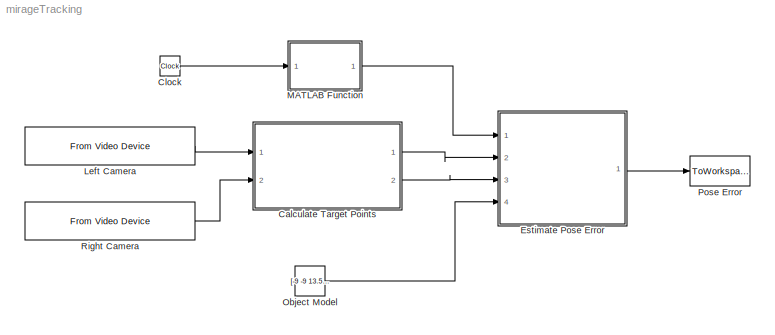
MODEL mirageTracking
KIND model
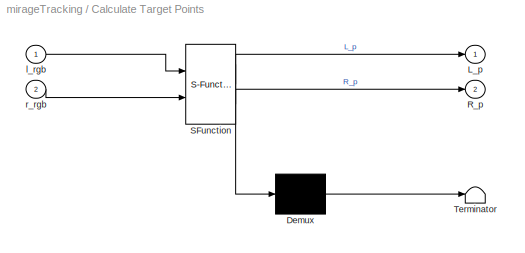
BLOCK [SubSystem] Calculate Target Points
  ErrorFcn = Stateflow.Translate.translate
  PermitHierarchicalResolution = ExplicitOnly
  Ports = [2, 2]
  RequestExecContextInheritance = off
  SFBlockType = MATLAB Function
  SID = 5
  TreatAsAtomicUnit = on
BLOCK [Demux] Calculate Target Points/ Demux 
  Outputs = 1
  Ports = [1, 1]
  SID = 5::22
BLOCK [S-Function] Calculate Target Points/ SFunction 
  EnableBusSupport = on
  FunctionName = sf_sfun
  PortCounts = [2 3]
  Ports = [2, 3]
  SID = 5::21
  Tag = Stateflow S-Function mirageTracking 1
BLOCK [Terminator] Calculate Target Points/ Terminator 
  SID = 5::23
BLOCK [Outport] Calculate Target Points/L_p
  IconDisplay = Port number
  SID = 5::5
BLOCK [Outport] Calculate Target Points/R_p
  IconDisplay = Port number
  Port = 2
  SID = 5::20
BLOCK [Inport] Calculate Target Points/l_rgb
  IconDisplay = Port number
  SID = 5::1
BLOCK [Inport] Calculate Target Points/r_rgb
  IconDisplay = Port number
  Port = 2
  SID = 5::19
BLOCK [Clock] Clock
  SID = 1
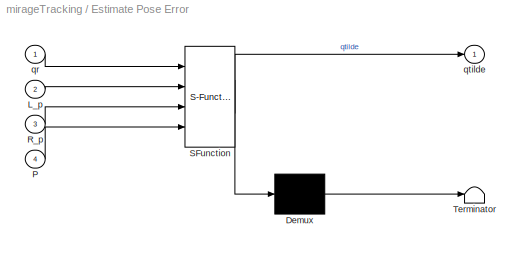
BLOCK [SubSystem] Estimate Pose Error
  ErrorFcn = Stateflow.Translate.translate
  PermitHierarchicalResolution = ExplicitOnly
  Ports = [4, 1]
  RequestExecContextInheritance = off
  SFBlockType = MATLAB Function
  SID = 6
  TreatAsAtomicUnit = on
BLOCK [Demux] Estimate Pose Error/ Demux 
  Outputs = 1
  Ports = [1, 1]
  SID = 6::23
BLOCK [S-Function] Estimate Pose Error/ SFunction 
  EnableBusSupport = on
  FunctionName = sf_sfun
  PortCounts = [4 2]
  Ports = [4, 2]
  SID = 6::22
  Tag = Stateflow S-Function mirageTracking 3
BLOCK [Terminator] Estimate Pose Error/ Terminator 
  SID = 6::24
BLOCK [Inport] Estimate Pose Error/L_p
  IconDisplay = Port number
  Port = 2
  SID = 6::19
BLOCK [Inport] Estimate Pose Error/P
  IconDisplay = Port number
  Port = 4
  SID = 6::21
BLOCK [Inport] Estimate Pose Error/R_p
  IconDisplay = Port number
  Port = 3
  SID = 6::20
BLOCK [Inport] Estimate Pose Error/qr
  IconDisplay = Port number
  SID = 6::1
BLOCK [Outport] Estimate Pose Error/qtilde
  IconDisplay = Port number
  SID = 6::5
BLOCK [Reference] Left Camera  REF=imaqlib/From Video Device
  AllMetadata = IsPositionTracked;IsSkeletonTracked;JointDepthIndices;JointImageIndices;JointTrackingState;JointWorldCoordinates;PositionDepthIndices;PositionImageIndices;PositionWorldCoordinates;SegmentationData;SkeletonTrackingID
  BayerSensorAlignment = grbg
  BlockHandle = 1921.0006
  CanDoHWTrigger = no
  DataType = single
  DevXMLPath = <path>
  Device = winvideo 1 (Logitech HD Webcam C525)
  DeviceMenu = winvideo 1 (Logitech HD Webcam C525)
  EnableHWTrigger = off
  EngLibPath = C:\\Program Files<path>
  EngXMLPath = C:\\Program Files<path>
  ObjConstructor = videoinput('winvideo', 1)
  OutputPortsMode = One multidimensional signal
  Ports = [0, 1]
  ROIColumn = 0
  ROIHeight = 960
  ROIPosition = [0 0 960 1280]
  ROIRow = 0
  ROIWidth = 1280
  ReturnedColorSpace = rgb
  SID = 3
  SampleTime = 0.1
  SourceBlock = imaqlib/From Video Device
  SourceType = From Video Device
  TriggerConfiguration = none/none
  UserData = DataTag0
  UserDataPersistent = on
  VideoFormat = RGB24_1280x960
  VideoFormatMenu = RGB24_1280x960
  VideoSource = input1
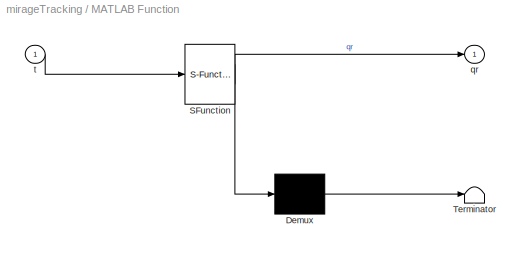
BLOCK [SubSystem] MATLAB Function
  ErrorFcn = Stateflow.Translate.translate
  PermitHierarchicalResolution = ExplicitOnly
  Ports = [1, 1]
  RequestExecContextInheritance = off
  SFBlockType = MATLAB Function
  SID = 2
  TreatAsAtomicUnit = on
BLOCK [Demux] MATLAB Function/ Demux 
  Outputs = 1
  Ports = [1, 1]
  SID = 2::20
BLOCK [S-Function] MATLAB Function/ SFunction 
  EnableBusSupport = on
  FunctionName = sf_sfun
  PortCounts = [1 2]
  Ports = [1, 2]
  SID = 2::19
  Tag = Stateflow S-Function mirageTracking 2
BLOCK [Terminator] MATLAB Function/ Terminator 
  SID = 2::21
BLOCK [Outport] MATLAB Function/qr
  IconDisplay = Port number
  SID = 2::5
BLOCK [Inport] MATLAB Function/t
  IconDisplay = Port number
  SID = 2::1
BLOCK [Constant] Object Model
  SID = 7
  Value = [-9 -9 13.5 0; 12.75 -12.75 0 0; 2 1.75 2 22.5; 1 1 1 1]
  VectorParams1D = off
BLOCK [ToWorkspace] Pose Error
  MaxDataPoints = inf
  Ports = [1]
  SID = 11
  SampleTime = -1
  VariableName = q
BLOCK [Reference] Right Camera  REF=imaqlib/From Video Device
  AllMetadata = IsPositionTracked;IsSkeletonTracked;JointDepthIndices;JointImageIndices;JointTrackingState;JointWorldCoordinates;PositionDepthIndices;PositionImageIndices;PositionWorldCoordinates;SegmentationData;SkeletonTrackingID
  BayerSensorAlignment = grbg
  BlockHandle = 1921.0006
  CanDoHWTrigger = no
  DataType = single
  DevXMLPath = <path>
  Device = winvideo 2 (Logitech HD Webcam C525)
  DeviceMenu = winvideo 2 (Logitech HD Webcam C525)
  EnableHWTrigger = off
  EngLibPath = C:\\Program Files<path>
  EngXMLPath = C:\\Program Files<path>
  ObjConstructor = videoinput('winvideo', 2)
  OutputPortsMode = One multidimensional signal
  Ports = [0, 1]
  ROIColumn = 0
  ROIHeight = 960
  ROIPosition = [0 0 960 1280]
  ROIRow = 0
  ROIWidth = 1280
  ReturnedColorSpace = rgb
  SID = 4
  SampleTime = 0.1
  SourceBlock = imaqlib/From Video Device
  SourceType = From Video Device
  TriggerConfiguration = none/none
  UserData = DataTag1
  UserDataPersistent = on
  VideoFormat = RGB24_1280x960
  VideoFormatMenu = RGB24_1280x960
  VideoSource = input1
LINE Calculate Target Points/ Demux :1 -> Calculate Target Points/ Terminator :1
LINE Calculate Target Points/ SFunction :1 -> Calculate Target Points/ Demux :1
LINE Calculate Target Points/ SFunction :2 -> Calculate Target Points/L_p:1
LINE Calculate Target Points/ SFunction :3 -> Calculate Target Points/R_p:1
LINE Calculate Target Points/l_rgb:1 -> Calculate Target Points/ SFunction :1
LINE Calculate Target Points/r_rgb:1 -> Calculate Target Points/ SFunction :2
LINE Calculate Target Points:1 -> Estimate Pose Error:2
LINE Calculate Target Points:2 -> Estimate Pose Error:3
LINE Clock:1 -> MATLAB Function:1
LINE Estimate Pose Error/ Demux :1 -> Estimate Pose Error/ Terminator :1
LINE Estimate Pose Error/ SFunction :1 -> Estimate Pose Error/ Demux :1
LINE Estimate Pose Error/ SFunction :2 -> Estimate Pose Error/qtilde:1
LINE Estimate Pose Error/L_p:1 -> Estimate Pose Error/ SFunction :2
LINE Estimate Pose Error/P:1 -> Estimate Pose Error/ SFunction :4
LINE Estimate Pose Error/R_p:1 -> Estimate Pose Error/ SFunction :3
LINE Estimate Pose Error/qr:1 -> Estimate Pose Error/ SFunction :1
LINE Estimate Pose Error:1 -> Pose Error:1
LINE Left Camera:1 -> Calculate Target Points:1
LINE MATLAB Function/ Demux :1 -> MATLAB Function/ Terminator :1
LINE MATLAB Function/ SFunction :1 -> MATLAB Function/ Demux :1
LINE MATLAB Function/ SFunction :2 -> MATLAB Function/qr:1
LINE MATLAB Function/t:1 -> MATLAB Function/ SFunction :1
LINE MATLAB Function:1 -> Estimate Pose Error:1
LINE Object Model:1 -> Estimate Pose Error:4
LINE Right Camera:1 -> Calculate Target Points:2
CHART Calculate Target Points states=1 transitions=1
  STATE_LABEL 'eML_blk_kernel()'
CHART MATLAB Function states=1 transitions=1
  STATE_LABEL 'eML_blk_kernel()'
CHART Estimate Pose Error states=1 transitions=1
  STATE_LABEL 'eML_blk_kernel()'
note: 6 file-system paths scrubbed to <path> (not preserved elsewhere — flat text is the only slx artifact)
